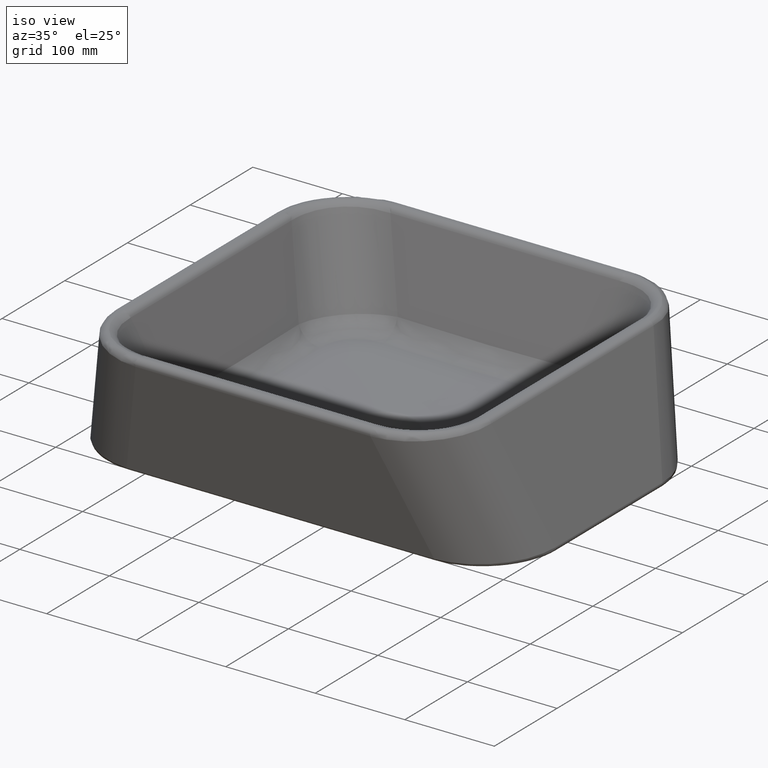
[diagram: clean part render]
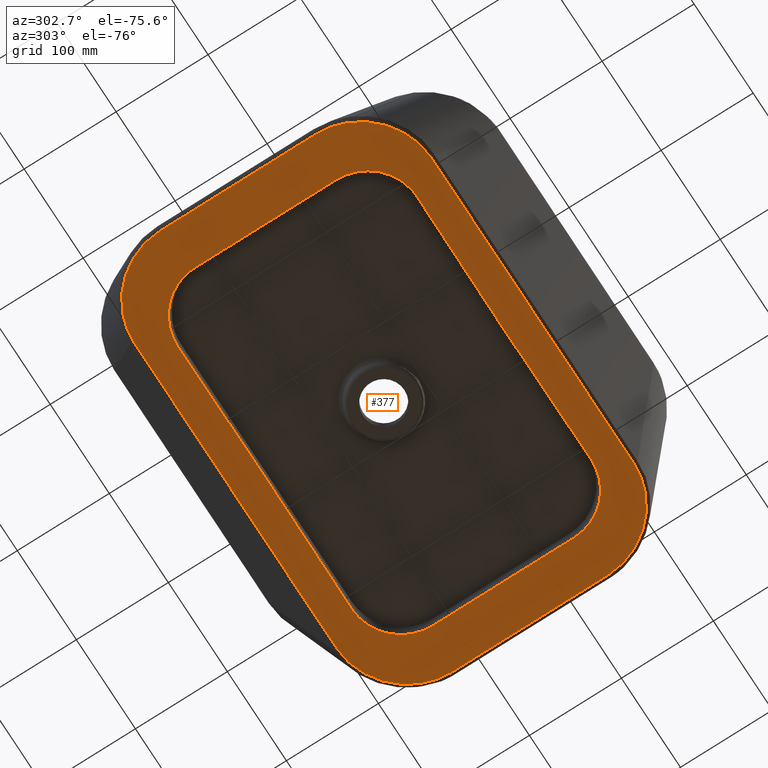
[diagram: tour spotlight — one face highlighted and labeled with its STEP entity id]
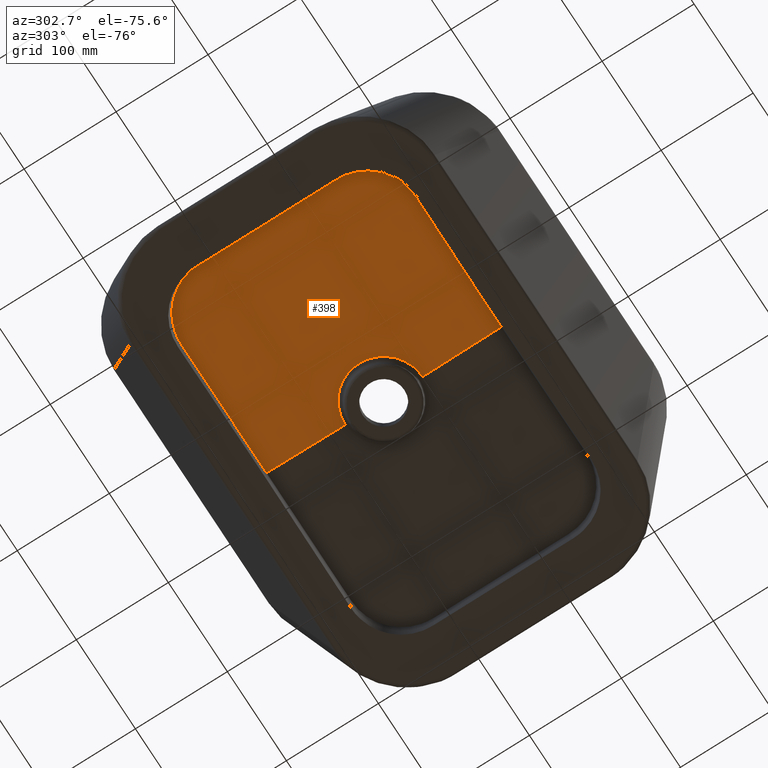
[diagram: tour spotlight — one face highlighted and labeled with its STEP entity id]
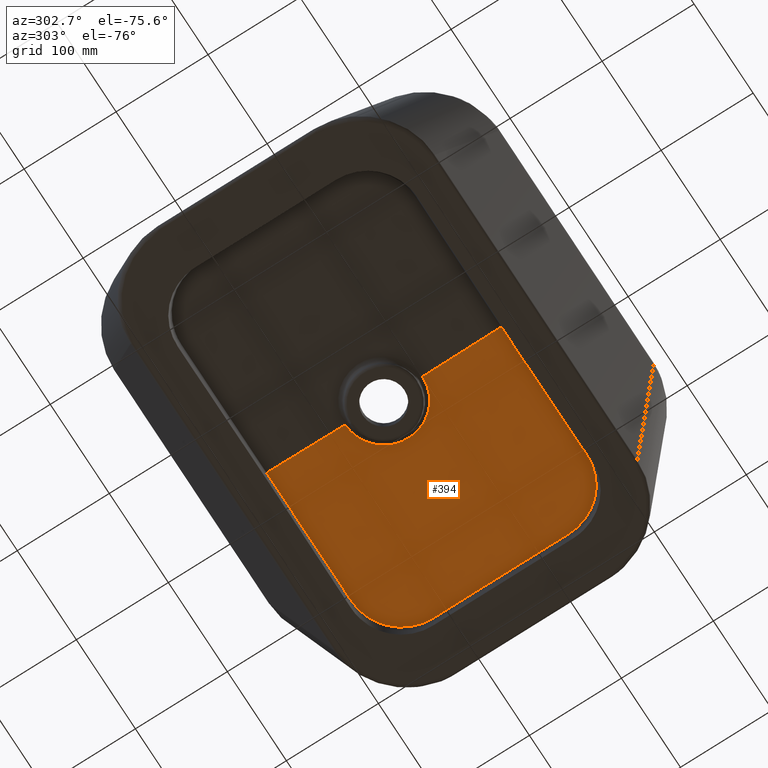
[diagram: tour spotlight — one face highlighted and labeled with its STEP entity id]
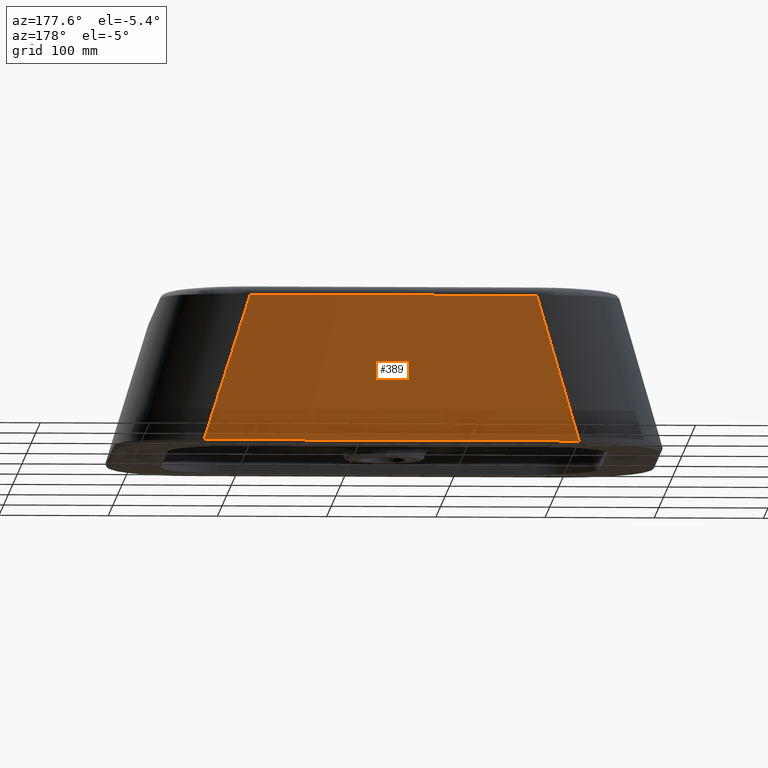
[diagram: tour spotlight — one face highlighted and labeled with its STEP entity id]
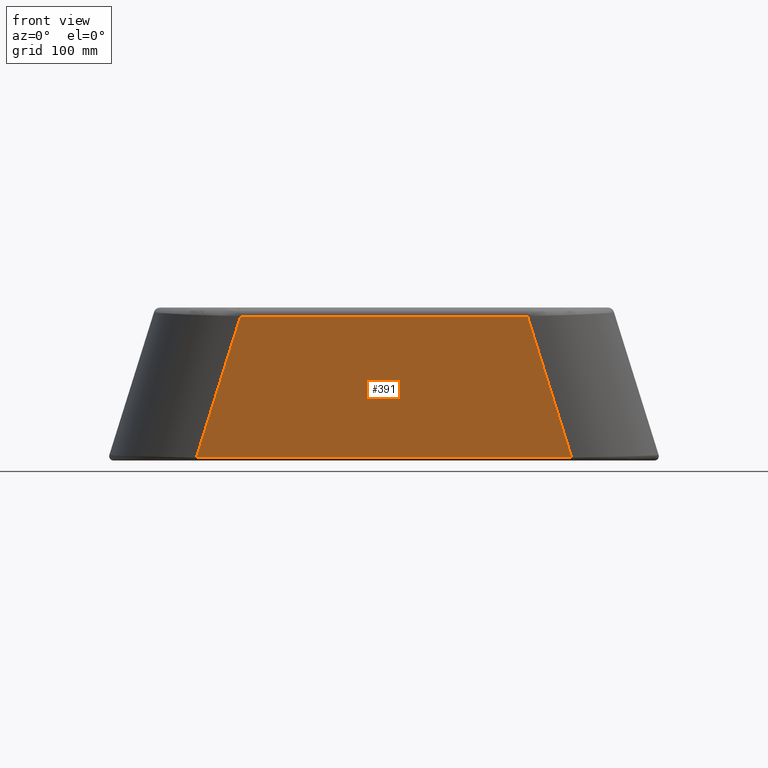
[diagram: tour spotlight — one face highlighted and labeled with its STEP entity id]
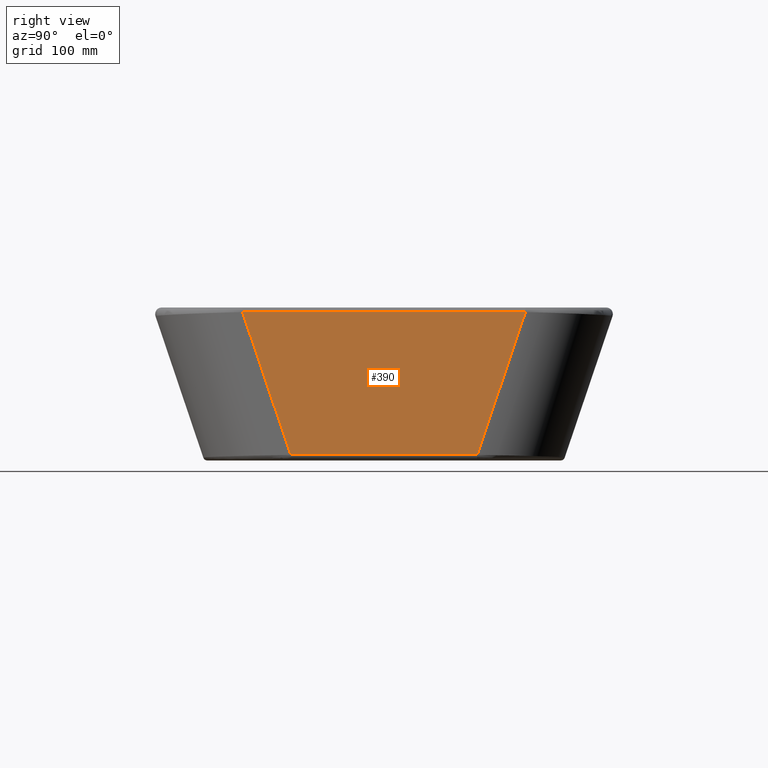
[diagram: tour spotlight — one face highlighted and labeled with its STEP entity id]
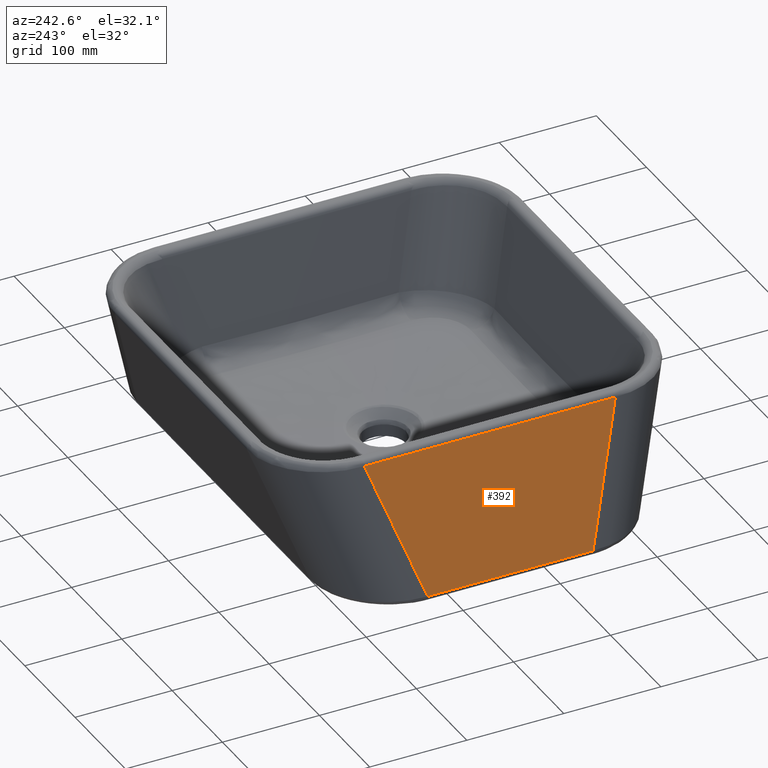
[diagram: tour spotlight — one face highlighted and labeled with its STEP entity id]
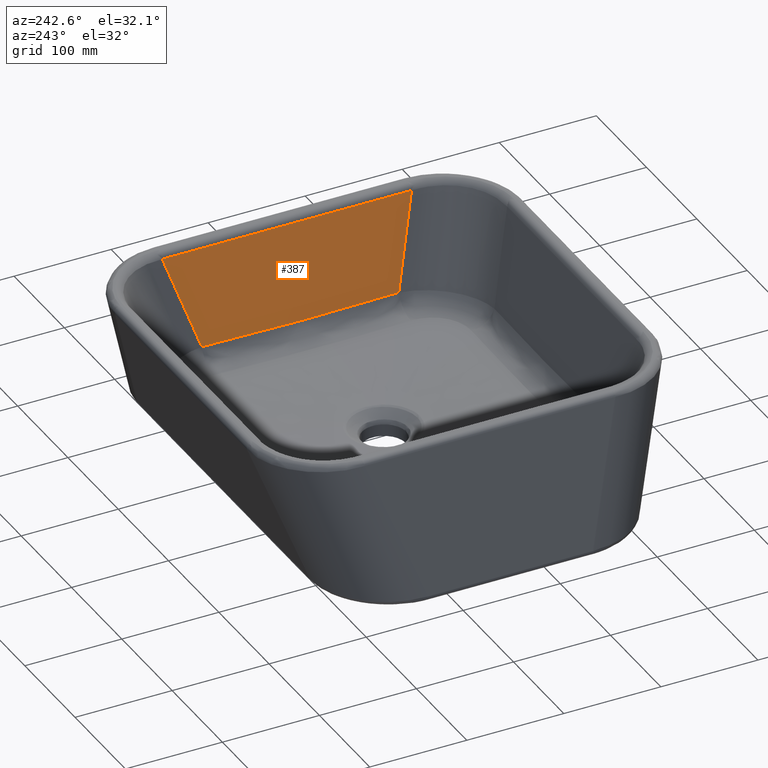
[diagram: tour spotlight — one face highlighted and labeled with its STEP entity id]
A machine part: a face-by-face anatomy tour. The part has 76 B-rep faces; the first image is the clean iso view, then the 8 largest visible faces are spotlighted one at a time (largest first), each with its STEP entity span.

Face 1 — auxiliary view, entity #377. In plain terms, the highlighted planar face has unit normal (0, 0, -1).
Definition (entity closure, byte-faithful):
#261=PLANE('',#1245);
#272=ELLIPSE('',#1241,72.6622166732108,66.);
#273=ELLIPSE('',#1242,72.6622166732108,66.);
#274=ELLIPSE('',#1243,72.6622166732108,66.);
#275=ELLIPSE('',#1244,72.6622166732108,66.);
#296=LINE('',#1892,#336);
#297=LINE('',#1897,#337);
#298=LINE('',#1901,#338);
#299=LINE('',#1905,#339);
#336=VECTOR('',#1336,1.);
#337=VECTOR('',#1339,1.);
#338=VECTOR('',#1342,1.);
#339=VECTOR('',#1345,1.);
#377=ADVANCED_FACE('',(#465,#466),#261,.T.);
#465=FACE_BOUND('',#477,.T.);
#466=FACE_BOUND('',#478,.T.);
#477=EDGE_LOOP('',(#567,#568,#569,#570,#571,#572,#573,#574));
#478=EDGE_LOOP('',(#575,#576,#577,#578,#579,#580,#581,#582));
#567=ORIENTED_EDGE('',*,*,#1007,.T.);
#568=ORIENTED_EDGE('',*,*,#1008,.T.);
#569=ORIENTED_EDGE('',*,*,#1009,.T.);
#570=ORIENTED_EDGE('',*,*,#1010,.T.);
#571=ORIENTED_EDGE('',*,*,#1011,.T.);
#572=ORIENTED_EDGE('',*,*,#1012,.T.);
#573=ORIENTED_EDGE('',*,*,#1013,.T.);
#574=ORIENTED_EDGE('',*,*,#1014,.T.);
#575=ORIENTED_EDGE('',*,*,#1015,.F.);
#576=ORIENTED_EDGE('',*,*,#1016,.T.);
#577=ORIENTED_EDGE('',*,*,#1017,.F.);
#578=ORIENTED_EDGE('',*,*,#1018,.T.);
#579=ORIENTED_EDGE('',*,*,#1019,.F.);
#580=ORIENTED_EDGE('',*,*,#1020,.T.);
#581=ORIENTED_EDGE('',*,*,#1021,.F.);
#582=ORIENTED_EDGE('',*,*,#1022,.T.);
#907=VERTEX_POINT('',#1893);
#908=VERTEX_POINT('',#1894);
#909=VERTEX_POINT('',#1896);
#910=VERTEX_POINT('',#1898);
#911=VERTEX_POINT('',#1900);
#912=VERTEX_POINT('',#1902);
#913=VERTEX_POINT('',#1904);
#914=VERTEX_POINT('',#1906);
#915=VERTEX_POINT('',#1912);
#916=VERTEX_POINT('',#1913);
#917=VERTEX_POINT('',#1930);
#918=VERTEX_POINT('',#1937);
#919=VERTEX_POINT('',#1954);
#920=VERTEX_POINT('',#1959);
#921=VERTEX_POINT('',#1976);
#922=VERTEX_POINT('',#1983);
#1007=EDGE_CURVE('',#907,#908,#296,.T.);
#1008=EDGE_CURVE('',#908,#909,#272,.T.);
#1009=EDGE_CURVE('',#909,#910,#297,.T.);
#1010=EDGE_CURVE('',#910,#911,#273,.T.);
#1011=EDGE_CURVE('',#911,#912,#298,.T.);
#1012=EDGE_CURVE('',#912,#913,#274,.T.);
#1013=EDGE_CURVE('',#913,#914,#299,.T.);
#1014=EDGE_CURVE('',#914,#907,#275,.T.);
#1015=EDGE_CURVE('',#915,#916,#1177,.T.);
#1016=EDGE_CURVE('',#915,#917,#1178,.T.);
#1017=EDGE_CURVE('',#918,#917,#1179,.T.);
#1018=EDGE_CURVE('',#918,#919,#1180,.T.);
#1019=EDGE_CURVE('',#920,#919,#1181,.T.);
#1020=EDGE_CURVE('',#920,#921,#1182,.T.);
#1021=EDGE_CURVE('',#922,#921,#1183,.T.);
#1022=EDGE_CURVE('',#922,#916,#1184,.T.);
#1177=B_SPLINE_CURVE_WITH_KNOTS('',3,(#1908,#1909,#1910,#1911),
 .UNSPECIFIED.,.F.,.F.,(4,4),(0.,1.),.UNSPECIFIED.);
#1178=B_SPLINE_CURVE_WITH_KNOTS('',3,(#1914,#1915,#1916,#1917,#1918,#1919,
#1920,#1921,#1922,#1923,#1924,#1925,#1926,#1927,#1928,#1929),
 .UNSPECIFIED.,.F.,.F.,(4,2,2,2,2,2,2,4),(0.,0.124999999999999,0.249999999999997,
0.374999999999996,0.499999999999995,0.749999999999997,0.874999999999999,
1.),.UNSPECIFIED.);
#1179=B_SPLINE_CURVE_WITH_KNOTS('',3,(#1931,#1932,#1933,#1934,#1935,#1936),
 .UNSPECIFIED.,.F.,.F.,(4,2,4),(0.,0.5,1.),.UNSPECIFIED.);
#1180=B_SPLINE_CURVE_WITH_KNOTS('',3,(#1938,#1939,#1940,#1941,#1942,#1943,
#1944,#1945,#1946,#1947,#1948,#1949,#1950,#1951,#1952,#1953),
 .UNSPECIFIED.,.F.,.F.,(4,2,2,2,2,2,2,4),(0.,0.125,0.25,0.375,0.5,0.625,
0.75,1.),.UNSPECIFIED.);
#1181=B_SPLINE_CURVE_WITH_KNOTS('',3,(#1955,#1956,#1957,#1958),
 .UNSPECIFIED.,.F.,.F.,(4,4),(0.,1.),.UNSPECIFIED.);
#1182=B_SPLINE_CURVE_WITH_KNOTS('',3,(#1960,#1961,#1962,#1963,#1964,#1965,
#1966,#1967,#1968,#1969,#1970,#1971,#1972,#1973,#1974,#1975),
 .UNSPECIFIED.,.F.,.F.,(4,2,2,2,2,2,2,4),(0.,0.125,0.25,0.375,0.5,0.625,
0.75,1.),.UNSPECIFIED.);
#1183=B_SPLINE_CURVE_WITH_KNOTS('',3,(#1977,#1978,#1979,#1980,#1981,#1982),
 .UNSPECIFIED.,.F.,.F.,(4,2,4),(0.,0.5,1.),.UNSPECIFIED.);
#1184=B_SPLINE_CURVE_WITH_KNOTS('',3,(#1984,#1985,#1986,#1987,#1988,#1989,
#1990,#1991,#1992,#1993,#1994,#1995,#1996,#1997,#1998,#1999),
 .UNSPECIFIED.,.F.,.F.,(4,2,2,2,2,2,2,4),(0.,0.125,0.249999999999999,0.374999999999999,
0.499999999999999,0.749999999999998,0.874999999999999,1.),.UNSPECIFIED.);
#1241=AXIS2_PLACEMENT_3D('',#1895,#1337,#1338);
#1242=AXIS2_PLACEMENT_3D('',#1899,#1340,#1341);
#1243=AXIS2_PLACEMENT_3D('',#1903,#1343,#1344);
#1244=AXIS2_PLACEMENT_3D('',#1907,#1346,#1347);
#1245=AXIS2_PLACEMENT_3D('',#2000,#1348,#1349);
#1336=DIRECTION('',(-1.,-2.20046511983548E-017,0.));
#1337=DIRECTION('',(0.,0.,1.));
#1338=DIRECTION('',(-0.73373421465365,-0.679436606495846,0.));
#1339=DIRECTION('',(0.,-1.,0.));
#1340=DIRECTION('',(0.,0.,1.));
#1341=DIRECTION('',(-0.73373421465365,0.679436606495846,0.));
#1342=DIRECTION('',(1.,-2.20046511983548E-017,0.));
#1343=DIRECTION('',(0.,0.,1.));
#1344=DIRECTION('',(0.73373421465365,0.679436606495846,0.));
#1345=DIRECTION('',(0.,1.,0.));
#1346=DIRECTION('',(0.,0.,1.));
#1347=DIRECTION('',(0.73373421465365,-0.679436606495846,0.));
#1348=DIRECTION('',(0.,0.,1.));
#1349=DIRECTION('',(1.,0.,0.));
#1892=CARTESIAN_POINT('',(104.906238427935,-628.744004977065,229.189909381171));
#1893=CARTESIAN_POINT('',(355.106173071399,-628.744004977065,229.189909381171));
#1894=CARTESIAN_POINT('',(184.609062066346,-628.744004977065,229.189909381171));
#1895=CARTESIAN_POINT('',(177.949600930577,-697.899312341047,229.189909381171));
#1896=CARTESIAN_POINT('',(108.283675290722,-704.509962777292,229.189909381171));
#1897=CARTESIAN_POINT('',(108.283675290722,-623.770546041579,229.189909381171));
#1898=CARTESIAN_POINT('',(108.283675290722,-1047.90080467256,229.189909381171));
#1899=CARTESIAN_POINT('',(177.949600930577,-1054.5114551088,229.189909381171));
#1900=CARTESIAN_POINT('',(184.609062066346,-1123.66676247278,229.189909381171));
#1901=CARTESIAN_POINT('',(104.906238427935,-1123.66676247278,229.189909381171));
#1902=CARTESIAN_POINT('',(355.106173071399,-1123.66676247278,229.189909381171));
#1903=CARTESIAN_POINT('',(361.765634207168,-1054.5114551088,229.189909381171));
#1904=CARTESIAN_POINT('',(431.431559847024,-1047.90080467256,229.189909381171));
#1905=CARTESIAN_POINT('',(431.431559847024,-623.770546041579,229.189909381171));
#1906=CARTESIAN_POINT('',(431.431559847024,-704.509962777292,229.189909381171));
#1907=CARTESIAN_POINT('',(361.765634207168,-697.899312341047,229.189909381171));
#1908=CARTESIAN_POINT('',(194.361937527168,-1077.3123079125,229.189909381171));
#1909=CARTESIAN_POINT('',(244.932222974675,-1076.99604622778,229.189909381171));
#1910=CARTESIAN_POINT('',(295.504844123383,-1076.99348454556,229.189909381171));
#1911=CARTESIAN_POINT('',(346.075140758217,-1077.30657766618,229.189909381171));
#1912=CARTESIAN_POINT('',(194.361937527168,-1077.3123079125,229.189909381171));
#1913=CARTESIAN_POINT('',(346.075140758217,-1077.30657766618,229.189909381171));
#1914=CARTESIAN_POINT('',(194.361937527168,-1077.3123079125,229.189909381171));
#1915=CARTESIAN_POINT('',(190.740966079013,-1077.33495311848,229.189909381171));
#1916=CARTESIAN_POINT('',(187.177341079127,-1077.00451903635,229.189909381171));
#1917=CARTESIAN_POINT('',(180.161666936476,-1075.65668375571,229.189909381171));
#1918=CARTESIAN_POINT('',(176.672134663815,-1074.62195694591,229.189909381171));
#1919=CARTESIAN_POINT('',(170.02527505447,-1071.89913941963,229.189909381171));
#1920=CARTESIAN_POINT('',(166.873150092522,-1070.22399655226,229.189909381171));
#1921=CARTESIAN_POINT('',(160.91100380717,-1066.24716940231,229.189909381171));
#1922=CARTESIAN_POINT('',(158.093821667504,-1063.92648888748,229.189909381171));
#1923=CARTESIAN_POINT('',(150.540339560281,-1056.3126903594,229.189909381171));
#1924=CARTESIAN_POINT('',(146.503881650272,-1050.16024769331,229.189909381171));
#1925=CARTESIAN_POINT('',(142.494638519443,-1040.22292915126,229.189909381171));
#1926=CARTESIAN_POINT('',(141.473756742223,-1036.74665635628,229.189909381171));
#1927=CARTESIAN_POINT('',(140.130878860257,-1029.66105430316,229.189909381171));
#1928=CARTESIAN_POINT('',(139.807288643325,-1026.07925335367,229.189909381171));
#1929=CARTESIAN_POINT('',(139.830804300585,-1022.45853576771,229.189909381171));
#1930=CARTESIAN_POINT('',(139.830804300585,-1022.45853576771,229.189909381171));
#1931=CARTESIAN_POINT('',(139.830804260927,-729.952231769066,229.189909381171));
#1932=CARTESIAN_POINT('',(140.147427317275,-778.702831142258,229.189909381171));
#1933=CARTESIAN_POINT('',(140.512542734907,-827.453185848492,229.189909381171));
#1934=CARTESIAN_POINT('',(140.512542733179,-924.957582202151,229.189909381171));
#1935=CARTESIAN_POINT('',(140.147427278049,-973.707936541102,229.189909381171));
#1936=CARTESIAN_POINT('',(139.830804300585,-1022.45853576771,229.189909381171));
#1937=CARTESIAN_POINT('',(139.830804260927,-729.952231769066,229.189909381171));
#1938=CARTESIAN_POINT('',(139.830804260927,-729.952231769066,229.189909381171));
#1939=CARTESIAN_POINT('',(139.807288636049,-726.33152006014,229.189909381171));
#1940=CARTESIAN_POINT('',(140.130987480982,-722.766993078474,229.189909381171));
#1941=CARTESIAN_POINT('',(141.454642199036,-715.747368070414,229.189909381171));
#1942=CARTESIAN_POINT('',(142.470805809355,-712.255834881017,229.189909381171));
#1943=CARTESIAN_POINT('',(145.153638526759,-705.588434523754,229.189909381171));
#1944=CARTESIAN_POINT('',(146.805599501629,-702.424279617444,229.189909381171));
#1945=CARTESIAN_POINT('',(150.730501048774,-696.435000493062,229.189909381171));
#1946=CARTESIAN_POINT('',(153.027360219823,-693.595501747924,229.189909381171));
#1947=CARTESIAN_POINT('',(158.060953478187,-688.5131584278,229.189909381171));
#1948=CARTESIAN_POINT('',(160.813869124795,-686.236612945279,229.189909381171));
#1949=CARTESIAN_POINT('',(166.803219141231,-682.225416965615,229.189909381171));
#1950=CARTESIAN_POINT('',(169.998334736976,-680.526313167388,229.189909381171));
#1951=CARTESIAN_POINT('',(179.908859546577,-676.455697928276,229.189909381171));
#1952=CARTESIAN_POINT('',(187.118709267686,-675.053161086829,229.189909381171));
#1953=CARTESIAN_POINT('',(194.361937486551,-675.098459537094,229.189909381171));
#1954=CARTESIAN_POINT('',(194.361937486552,-675.098459537094,229.189909381171));
#1955=CARTESIAN_POINT('',(346.075140751658,-675.10418978371,229.189909381171));
#1956=CARTESIAN_POINT('',(295.504843980582,-675.41728290515,229.189909381171));
#1957=CARTESIAN_POINT('',(244.932222820193,-675.41472122123,229.189909381171));
#1958=CARTESIAN_POINT('',(194.361937486552,-675.098459537094,229.189909381171));
#1959=CARTESIAN_POINT('',(346.075140751659,-675.10418978371,229.189909381171));
#1960=CARTESIAN_POINT('',(346.075140751658,-675.10418978371,229.189909381165));
#1961=CARTESIAN_POINT('',(349.677775189926,-675.081884989519,229.189909381165));
#1962=CARTESIAN_POINT('',(353.225373498495,-675.400793626571,229.189909381171));
#1963=CARTESIAN_POINT('',(360.212616128448,-676.707904882373,229.189909381171));
#1964=CARTESIAN_POINT('',(363.688381591036,-677.711936551989,229.189909381171));
#1965=CARTESIAN_POINT('',(370.329024149496,-680.368946177322,229.189909381171));
#1966=CARTESIAN_POINT('',(373.480348222046,-682.006721626219,229.189909381171));
#1967=CARTESIAN_POINT('',(379.443945868199,-685.902746469021,229.189909381171));
#1968=CARTESIAN_POINT('',(382.272436798824,-688.186314405814,229.189909381171));
#1969=CARTESIAN_POINT('',(387.331366411498,-693.195190713611,229.189909381171));
#1970=CARTESIAN_POINT('',(389.594872312594,-695.935733869689,229.189909381171));
#1971=CARTESIAN_POINT('',(393.578163948388,-701.899507726962,229.189909381171));
#1972=CARTESIAN_POINT('',(395.263880191218,-705.084089053763,229.189909381171));
#1973=CARTESIAN_POINT('',(399.29256714173,-714.957011893635,229.189909381171));
#1974=CARTESIAN_POINT('',(400.666354020832,-722.135429367288,229.189909381171));
#1975=CARTESIAN_POINT('',(400.611423726641,-729.342998537309,229.189909381171));
#1976=CARTESIAN_POINT('',(400.611423726641,-729.342998537308,229.189909381171));
#1977=CARTESIAN_POINT('',(400.611423732978,-1023.06776889878,229.189909381171));
#1978=CARTESIAN_POINT('',(400.238339291735,-974.114238379015,229.189909381171));
#1979=CARTESIAN_POINT('',(399.793060566626,-925.161137883747,229.189909381171));
#1980=CARTESIAN_POINT('',(399.793060570337,-827.249628561269,229.189909381171));
#1981=CARTESIAN_POINT('',(400.238339299157,-778.296528770091,229.189909381171));
#1982=CARTESIAN_POINT('',(400.611423726641,-729.342998537308,229.189909381171));
#1983=CARTESIAN_POINT('',(400.611423732978,-1023.06776889878,229.189909381171));
#1984=CARTESIAN_POINT('',(400.611423732978,-1023.06776889878,229.189909381171));
#1985=CARTESIAN_POINT('',(400.638882232481,-1026.67068112148,229.189909381171));
#1986=CARTESIAN_POINT('',(400.317991762506,-1030.21777152199,229.189909381171));
#1987=CARTESIAN_POINT('',(398.993739397451,-1037.20258843251,229.189909381171));
#1988=CARTESIAN_POINT('',(397.973233371363,-1040.67781913256,229.189909381171));
#1989=CARTESIAN_POINT('',(395.279184786562,-1047.29820962431,229.189909381171));
#1990=CARTESIAN_POINT('',(393.618687395453,-1050.43781409665,229.189909381171));
#1991=CARTESIAN_POINT('',(389.669766778296,-1056.37530837954,229.189909381171));
#1992=CARTESIAN_POINT('',(387.361855924848,-1059.18081520838,229.189909381171));
#1993=CARTESIAN_POINT('',(379.784562567003,-1066.69676729841,229.189909381171));
#1994=CARTESIAN_POINT('',(373.654997241394,-1070.70383709734,229.189909381171));
#1995=CARTESIAN_POINT('',(363.75657943712,-1074.67511433608,229.189909381171));
#1996=CARTESIAN_POINT('',(360.292855003445,-1075.68458070418,229.189909381171));
#1997=CARTESIAN_POINT('',(353.242100368402,-1077.01007151966,229.189909381171));
#1998=CARTESIAN_POINT('',(349.677882025802,-1077.32888312178,229.189909381171));
#1999=CARTESIAN_POINT('',(346.075140758217,-1077.30657766618,229.189909381171));
#2000=CARTESIAN_POINT('',(104.906238427935,-623.770546041579,229.189909381171));

Face 2 — auxiliary view, entity #398. In plain terms, the highlighted face is a freeform B-spline surface patch.
Definition (entity closure, byte-faithful):
#209=FACE_OUTER_BOUND('',#501,.T.);
#398=ADVANCED_FACE('',(#209),#459,.T.);
#459=B_SPLINE_SURFACE_WITH_KNOTS('',3,3,((#3133,#3134,#3135,#3136),(#3137,
#3138,#3139,#3140),(#3141,#3142,#3143,#3144),(#3145,#3146,#3147,#3148),
(#3149,#3150,#3151,#3152),(#3153,#3154,#3155,#3156),(#3157,#3158,#3159,
#3160),(#3161,#3162,#3163,#3164),(#3165,#3166,#3167,#3168),(#3169,#3170,
#3171,#3172),(#3173,#3174,#3175,#3176),(#3177,#3178,#3179,#3180),(#3181,
#3182,#3183,#3184),(#3185,#3186,#3187,#3188),(#3189,#3190,#3191,#3192),
(#3193,#3194,#3195,#3196),(#3197,#3198,#3199,#3200),(#3201,#3202,#3203,
#3204),(#3205,#3206,#3207,#3208),(#3209,#3210,#3211,#3212),(#3213,#3214,
#3215,#3216),(#3217,#3218,#3219,#3220),(#3221,#3222,#3223,#3224),(#3225,
#3226,#3227,#3228),(#3229,#3230,#3231,#3232)),.UNSPECIFIED.,.F.,.F.,.F.,
(4,3,3,3,3,3,3,3,4),(4,4),(0.,0.125,0.25,0.375,0.5,0.625,0.75,0.875,1.),
(0.,1.),.UNSPECIFIED.);
#501=EDGE_LOOP('',(#680,#681,#682,#683,#684,#685,#686,#687));
#680=ORIENTED_EDGE('',*,*,#1090,.F.);
#681=ORIENTED_EDGE('',*,*,#1104,.T.);
#682=ORIENTED_EDGE('',*,*,#1088,.F.);
#683=ORIENTED_EDGE('',*,*,#1100,.F.);
#684=ORIENTED_EDGE('',*,*,#1105,.T.);
#685=ORIENTED_EDGE('',*,*,#1106,.F.);
#686=ORIENTED_EDGE('',*,*,#1107,.T.);
#687=ORIENTED_EDGE('',*,*,#1096,.F.);
#978=VERTEX_POINT('',#2753);
#979=VERTEX_POINT('',#2754);
#980=VERTEX_POINT('',#2783);
#981=VERTEX_POINT('',#2788);
#986=VERTEX_POINT('',#2941);
#987=VERTEX_POINT('',#2978);
#988=VERTEX_POINT('',#3113);
#989=VERTEX_POINT('',#3118);
#1088=EDGE_CURVE('',#978,#979,#1201,.T.);
#1090=EDGE_CURVE('',#980,#981,#1203,.T.);
#1096=EDGE_CURVE('',#981,#986,#1209,.T.);
#1100=EDGE_CURVE('',#987,#978,#1213,.T.);
#1104=EDGE_CURVE('',#980,#979,#1217,.T.);
#1105=EDGE_CURVE('',#987,#988,#1218,.T.);
#1106=EDGE_CURVE('',#989,#988,#1219,.T.);
#1107=EDGE_CURVE('',#989,#986,#1220,.T.);
#1201=B_SPLINE_CURVE_WITH_KNOTS('',3,(#2749,#2750,#2751,#2752),
 .UNSPECIFIED.,.F.,.F.,(4,4),(0.,1.),.UNSPECIFIED.);
#1203=B_SPLINE_CURVE_WITH_KNOTS('',3,(#2784,#2785,#2786,#2787),
 .UNSPECIFIED.,.F.,.F.,(4,4),(0.,1.),.UNSPECIFIED.);
#1209=B_SPLINE_CURVE_WITH_KNOTS('',3,(#2937,#2938,#2939,#2940),
 .UNSPECIFIED.,.F.,.F.,(4,4),(0.,1.),.UNSPECIFIED.);
#1213=B_SPLINE_CURVE_WITH_KNOTS('',3,(#2979,#2980,#2981,#2982),
 .UNSPECIFIED.,.F.,.F.,(4,4),(0.,1.),.UNSPECIFIED.);
#1217=B_SPLINE_CURVE_WITH_KNOTS('',3,(#3071,#3072,#3073,#3074,#3075,#3076,
#3077,#3078,#3079,#3080,#3081,#3082,#3083,#3084,#3085,#3086,#3087,#3088,
#3089,#3090,#3091,#3092,#3093,#3094,#3095,#3096,#3097,#3098),
 .UNSPECIFIED.,.F.,.F.,(4,2,2,2,2,2,2,2,2,2,2,2,2,4),(0.,0.124999999999998,
0.187499999999998,0.249999999999998,0.312499999999999,0.374999999999999,
0.437499999999999,0.499999999999999,0.624999999999999,0.687499999999999,
0.75,0.8125,0.875,1.),.UNSPECIFIED.);
#1218=B_SPLINE_CURVE_WITH_KNOTS('',3,(#3099,#3100,#3101,#3102,#3103,#3104,
#3105,#3106,#3107,#3108,#3109,#3110,#3111,#3112),.UNSPECIFIED.,.F.,.F.,
(4,2,2,2,2,2,4),(0.,0.125000000000001,0.250000000000001,0.375000000000002,
0.500000000000003,0.750000000000001,1.),.UNSPECIFIED.);
#1219=B_SPLINE_CURVE_WITH_KNOTS('',3,(#3114,#3115,#3116,#3117),
 .UNSPECIFIED.,.F.,.F.,(4,4),(0.,1.),.UNSPECIFIED.);
#1220=B_SPLINE_CURVE_WITH_KNOTS('',3,(#3119,#3120,#3121,#3122,#3123,#3124,
#3125,#3126,#3127,#3128,#3129,#3130,#3131,#3132),.UNSPECIFIED.,.F.,.F.,
(4,2,2,2,2,2,4),(0.,0.125000000000001,0.250000000000001,0.375000000000002,
0.500000000000003,0.750000000000001,1.),.UNSPECIFIED.);
#2749=CARTESIAN_POINT('',(397.305411385418,-876.205383726578,217.486440132709));
#2750=CARTESIAN_POINT('',(368.766915590362,-876.205383726208,218.48302636601));
#2751=CARTESIAN_POINT('',(340.228419795307,-876.205383725839,219.47961259931));
#2752=CARTESIAN_POINT('',(311.689924000251,-876.205383725468,220.47619883261));
#2753=CARTESIAN_POINT('',(397.305411385418,-876.205383726578,217.486440132709));
#2754=CARTESIAN_POINT('',(311.689924000251,-876.205383725468,220.47619883261));
#2783=CARTESIAN_POINT('',(227.759131623219,-876.205383724924,220.476198894773));
#2784=CARTESIAN_POINT('',(227.759131623219,-876.205383724924,220.476198894773));
#2785=CARTESIAN_POINT('',(199.225184777638,-876.205383724925,219.479771514289));
#2786=CARTESIAN_POINT('',(170.691237932058,-876.205383724924,218.483344133804));
#2787=CARTESIAN_POINT('',(142.157291086477,-876.205383724924,217.48691675332));
#2788=CARTESIAN_POINT('',(142.157291086477,-876.205383724924,217.48691675332));
#2937=CARTESIAN_POINT('',(142.157291086477,-876.205383724924,217.48691675332));
#2938=CARTESIAN_POINT('',(142.157291086147,-828.269671108834,217.486916753308));
#2939=CARTESIAN_POINT('',(141.947496012293,-780.350405276797,216.475296789096));
#2940=CARTESIAN_POINT('',(141.810162072937,-732.434780462832,215.221502675719));
#2941=CARTESIAN_POINT('',(141.810162072937,-732.434780462832,215.221502675719));
#2978=CARTESIAN_POINT('',(397.619985468319,-731.829087661356,215.206116838667));
#2979=CARTESIAN_POINT('',(397.619985468319,-731.829087661356,215.206116838667));
#2980=CARTESIAN_POINT('',(397.518096482611,-779.946620381958,216.466770217425));
#2981=CARTESIAN_POINT('',(397.305411384851,-828.067717861,217.486440132751));
#2982=CARTESIAN_POINT('',(397.305411385418,-876.205383726578,217.486440132709));
#3071=CARTESIAN_POINT('',(227.759131623219,-876.205383724924,220.476198894773));
#3072=CARTESIAN_POINT('',(227.759131665046,-870.663322786603,220.476198896233));
#3073=CARTESIAN_POINT('',(228.854611836554,-865.207187249728,220.47619944114));
#3074=CARTESIAN_POINT('',(232.013117534677,-857.590950374237,220.476198622761));
#3075=CARTESIAN_POINT('',(233.330658278084,-855.137227604837,220.476185198355));
#3076=CARTESIAN_POINT('',(236.371473236093,-850.593917905401,220.476189250625));
#3077=CARTESIAN_POINT('',(238.105155462857,-848.474876407448,220.476199406604));
#3078=CARTESIAN_POINT('',(242.023930303906,-844.559809863197,220.476198374944));
#3079=CARTESIAN_POINT('',(244.148590855865,-842.825067865507,220.476186884437));
#3080=CARTESIAN_POINT('',(248.694076433387,-839.789817176153,220.476187520458));
#3081=CARTESIAN_POINT('',(251.145606247257,-838.476260271844,220.476198790023));
#3082=CARTESIAN_POINT('',(256.229599457825,-836.373911923033,220.4761989807));
#3083=CARTESIAN_POINT('',(258.845512809562,-835.584423315257,220.476187372537));
#3084=CARTESIAN_POINT('',(264.221133017764,-834.514514565819,220.476187008646));
#3085=CARTESIAN_POINT('',(266.998856948388,-834.23871592704,220.476196919707));
#3086=CARTESIAN_POINT('',(275.231144264071,-834.242545486728,220.476202836977));
#3087=CARTESIAN_POINT('',(280.743524387623,-835.344801886285,220.476195622208));
#3088=CARTESIAN_POINT('',(288.320558852899,-838.485989433733,220.476200504183));
#3089=CARTESIAN_POINT('',(290.779828291629,-839.803417263706,220.476188371521));
#3090=CARTESIAN_POINT('',(295.34043514842,-842.854793696769,220.476185937893));
#3091=CARTESIAN_POINT('',(297.452955039594,-844.586318879538,220.476199342917));
#3092=CARTESIAN_POINT('',(301.336289311985,-848.468573814539,220.476198349082));
#3093=CARTESIAN_POINT('',(303.10215756867,-850.6257961655,220.476186025184));
#3094=CARTESIAN_POINT('',(306.138837364352,-855.172678977178,220.476188303071));
#3095=CARTESIAN_POINT('',(307.433363725118,-857.583234554549,220.476199647262));
#3096=CARTESIAN_POINT('',(310.610089667824,-865.247938465346,220.476197215413));
#3097=CARTESIAN_POINT('',(311.689923957727,-870.663063269036,220.476198834098));
#3098=CARTESIAN_POINT('',(311.689924000251,-876.205383725468,220.47619883261));
#3099=CARTESIAN_POINT('',(397.619985468319,-731.829087661356,215.206116838667));
#3100=CARTESIAN_POINT('',(397.627603833379,-728.231280425111,215.111856231523));
#3101=CARTESIAN_POINT('',(397.286346481476,-724.691351226618,215.025648780786));
#3102=CARTESIAN_POINT('',(395.92341438837,-717.724408022692,214.867442591112));
#3103=CARTESIAN_POINT('',(394.884542845457,-714.260312760435,214.794768081209));
#3104=CARTESIAN_POINT('',(392.15867040067,-707.662209129566,214.667364629273));
#3105=CARTESIAN_POINT('',(390.484871860943,-704.534395370492,214.612590760006));
#3106=CARTESIAN_POINT('',(386.516532218479,-698.620722388099,214.519754132381));
#3107=CARTESIAN_POINT('',(384.202197516438,-695.826571374387,214.481747530871));
#3108=CARTESIAN_POINT('',(376.614531055787,-688.337588555278,214.397123852197));
#3109=CARTESIAN_POINT('',(370.49109424416,-684.340363352454,214.377568065865));
#3110=CARTESIAN_POINT('',(357.314796090222,-679.04133771754,214.41175183318));
#3111=CARTESIAN_POINT('',(350.149746702946,-677.674689215227,214.465283221537));
#3112=CARTESIAN_POINT('',(342.953059057115,-677.702577727221,214.553093641413));
#3113=CARTESIAN_POINT('',(342.953059057115,-677.702577727221,214.553093641413));
#3114=CARTESIAN_POINT('',(196.427357117615,-677.697177136634,214.552087587674));
#3115=CARTESIAN_POINT('',(245.269246655645,-677.889306416491,215.148600707623));
#3116=CARTESIAN_POINT('',(294.111147274069,-677.891849279584,215.14903846941));
#3117=CARTESIAN_POINT('',(342.953059057115,-677.702577727221,214.553093641413));
#3118=CARTESIAN_POINT('',(196.427357117615,-677.697177136634,214.552087587674));
#3119=CARTESIAN_POINT('',(196.427357117615,-677.697177136634,214.552087587674));
#3120=CARTESIAN_POINT('',(192.811127405975,-677.682951978336,214.507922046821));
#3121=CARTESIAN_POINT('',(189.252859475692,-678.020429877355,214.473133035081));
#3122=CARTESIAN_POINT('',(182.248789345195,-679.377774561447,214.421026348065));
#3123=CARTESIAN_POINT('',(178.76603683992,-680.414644154424,214.403674368215));
#3124=CARTESIAN_POINT('',(172.127296002707,-683.137588954725,214.387972358703));
#3125=CARTESIAN_POINT('',(168.978681598331,-684.810151942864,214.389394628187));
#3126=CARTESIAN_POINT('',(163.021762897747,-688.775269232644,214.410816618857));
#3127=CARTESIAN_POINT('',(160.203801307199,-691.08839822777,214.431183862859));
#3128=CARTESIAN_POINT('',(152.640788747034,-698.675824435028,214.518801467886));
#3129=CARTESIAN_POINT('',(148.588138038984,-704.803766241928,214.614914047405));
#3130=CARTESIAN_POINT('',(143.195284618168,-718.010050770234,214.87062493146));
#3131=CARTESIAN_POINT('',(141.789438642217,-725.204403646334,215.032307524341));
#3132=CARTESIAN_POINT('',(141.810162072937,-732.434780462832,215.221502675719));
#3133=CARTESIAN_POINT('',(228.807997565165,-876.205383724924,220.512826100559));
#3134=CARTESIAN_POINT('',(169.922422898943,-876.205383724925,218.456496521251));
#3135=CARTESIAN_POINT('',(111.036848232721,-876.205383724924,216.400166941943));
#3136=CARTESIAN_POINT('',(52.1512735664981,-876.205383724924,214.343837362634));
#3137=CARTESIAN_POINT('',(228.807997565165,-870.849364750035,220.512826100559));
#3138=CARTESIAN_POINT('',(169.922422898943,-863.141261051095,218.456496521251));
#3139=CARTESIAN_POINT('',(111.036848232721,-855.433157352153,216.400166941943));
#3140=CARTESIAN_POINT('',(52.1512735664981,-847.725053653212,214.343837362634));
#3141=CARTESIAN_POINT('',(229.872923182693,-865.495622136881,220.512826100559));
#3142=CARTESIAN_POINT('',(172.519982407893,-850.082447548655,218.456496521251));
#3143=CARTESIAN_POINT('',(115.167041633094,-834.669272960425,216.400166941943));
#3144=CARTESIAN_POINT('',(57.8141008582937,-819.256098372197,214.343837362634));
#3145=CARTESIAN_POINT('',(231.922582907825,-860.547305830242,220.512826100559));
#3146=CARTESIAN_POINT('',(177.519405713574,-838.012772000094,218.456496521251));
#3147=CARTESIAN_POINT('',(123.116228519322,-815.478238169944,216.400166941943));
#3148=CARTESIAN_POINT('',(68.7130513250705,-792.943704339795,214.343837362634));
#3149=CARTESIAN_POINT('',(233.972242632956,-855.598989523604,220.512826100559));
#3150=CARTESIAN_POINT('',(182.518829019254,-825.943096451533,218.456496521251));
#3151=CARTESIAN_POINT('',(131.06541540555,-796.287203379463,216.400166941943));
#3152=CARTESIAN_POINT('',(79.6120017918472,-766.631310307392,214.343837362634));
#3153=CARTESIAN_POINT('',(237.004894213845,-851.060305691512,220.512826100559));
#3154=CARTESIAN_POINT('',(189.9160526578,-814.872368926411,218.456496521251));
#3155=CARTESIAN_POINT('',(142.827211101754,-778.684432161321,216.400166941943));
#3156=CARTESIAN_POINT('',(95.7383695457081,-742.496495396225,214.343837362634));
#3157=CARTESIAN_POINT('',(240.792171551166,-847.273028354216,220.512826100559));
#3158=CARTESIAN_POINT('',(199.153782390748,-805.634639193524,218.456496521251));
#3159=CARTESIAN_POINT('',(157.515393230331,-763.99625003284,216.400166941943));
#3160=CARTESIAN_POINT('',(115.877004069913,-722.357860872152,214.343837362634));
#3161=CARTESIAN_POINT('',(244.579448888486,-843.48575101692,220.512826100559));
#3162=CARTESIAN_POINT('',(208.391512123697,-796.396909460637,218.456496521251));
#3163=CARTESIAN_POINT('',(172.203575358908,-749.30806790436,216.400166941943));
#3164=CARTESIAN_POINT('',(136.015638594118,-702.21922634808,214.343837362634));
#3165=CARTESIAN_POINT('',(249.118132720597,-840.45309943606,220.512826100559));
#3166=CARTESIAN_POINT('',(219.46223964886,-788.999685822167,218.45649652125));
#3167=CARTESIAN_POINT('',(189.806346577124,-737.546272208268,216.400166941943));
#3168=CARTESIAN_POINT('',(160.150453505387,-686.092858594372,214.343837362634));
#3169=CARTESIAN_POINT('',(254.06644902725,-838.403439710961,220.512826100559));
#3170=CARTESIAN_POINT('',(231.531915197452,-784.000262516566,218.456496521251));
#3171=CARTESIAN_POINT('',(208.997381367658,-729.597085322165,216.400166941943));
#3172=CARTESIAN_POINT('',(186.462847537862,-675.193908127768,214.343837362634));
#3173=CARTESIAN_POINT('',(259.014765333902,-836.353779985862,220.512826100559));
#3174=CARTESIAN_POINT('',(243.601590746045,-779.000839210964,218.456496521252));
#3175=CARTESIAN_POINT('',(228.188416158192,-721.647898436063,216.400166941943));
#3176=CARTESIAN_POINT('',(212.775241570337,-664.294957661163,214.343837362634));
#3177=CARTESIAN_POINT('',(264.368507947062,-835.288854368368,220.512826100559));
#3178=CARTESIAN_POINT('',(256.660404248504,-776.403279702097,218.456496521251));
#3179=CARTESIAN_POINT('',(248.952300549945,-717.517705035822,216.400166941943));
#3180=CARTESIAN_POINT('',(241.244196851386,-658.632130369548,214.343837362634));
#3181=CARTESIAN_POINT('',(269.724526921952,-835.288854368403,220.512826100559));
#3182=CARTESIAN_POINT('',(269.724526922334,-776.403279702182,218.456496521251));
#3183=CARTESIAN_POINT('',(269.724526922716,-717.517705035958,216.400166941943));
#3184=CARTESIAN_POINT('',(269.724526923098,-658.632130369736,214.343837362634));
#3185=CARTESIAN_POINT('',(275.080545896841,-835.288854368438,220.512826100559));
#3186=CARTESIAN_POINT('',(282.788649596164,-776.403279702267,218.456496521251));
#3187=CARTESIAN_POINT('',(290.496753295487,-717.517705036095,216.400166941943));
#3188=CARTESIAN_POINT('',(298.204856994811,-658.632130369923,214.343837362634));
#3189=CARTESIAN_POINT('',(280.434288509988,-836.353779986,220.512826100559));
#3190=CARTESIAN_POINT('',(295.847463098588,-779.000839211302,218.45649652125));
#3191=CARTESIAN_POINT('',(311.260637687188,-721.647898436599,216.400166941943));
#3192=CARTESIAN_POINT('',(326.673812275788,-664.294957661898,214.343837362634));
#3193=CARTESIAN_POINT('',(285.382604816613,-838.403439711164,220.512826100559));
#3194=CARTESIAN_POINT('',(307.917138647117,-784.000262517059,218.456496521251));
#3195=CARTESIAN_POINT('',(330.451672477617,-729.597085322953,216.400166941943));
#3196=CARTESIAN_POINT('',(352.986206308119,-675.193908128848,214.343837362634));
#3197=CARTESIAN_POINT('',(290.330921123239,-840.453099436328,220.512826100559));
#3198=CARTESIAN_POINT('',(319.986814195645,-788.999685822817,218.456496521252));
#3199=CARTESIAN_POINT('',(349.642707268047,-737.546272209308,216.400166941943));
#3200=CARTESIAN_POINT('',(379.298600340451,-686.092858595798,214.343837362634));
#3201=CARTESIAN_POINT('',(294.869604955311,-843.485751017246,220.512826100559));
#3202=CARTESIAN_POINT('',(331.057541720712,-796.396909461436,218.456496521251));
#3203=CARTESIAN_POINT('',(367.245478486114,-749.308067905623,216.400166941943));
#3204=CARTESIAN_POINT('',(403.433415251515,-702.219226349811,214.343837362634));
#3205=CARTESIAN_POINT('',(298.656882292582,-847.273028354591,220.512826100559));
#3206=CARTESIAN_POINT('',(340.29527145354,-805.634639194444,218.456496521251));
#3207=CARTESIAN_POINT('',(381.933660614498,-763.996250034296,216.400166941943));
#3208=CARTESIAN_POINT('',(423.572049775456,-722.357860874149,214.343837362634));
#3209=CARTESIAN_POINT('',(302.444159629853,-851.060305691937,220.512826100559));
#3210=CARTESIAN_POINT('',(349.533001186368,-814.872368927453,218.456496521251));
#3211=CARTESIAN_POINT('',(396.621842742882,-778.68443216297,216.400166941943));
#3212=CARTESIAN_POINT('',(443.710684299396,-742.496495398486,214.343837362634));
#3213=CARTESIAN_POINT('',(305.476811210685,-855.598989524067,220.512826100559));
#3214=CARTESIAN_POINT('',(356.930224824774,-825.943096452663,218.456496521252));
#3215=CARTESIAN_POINT('',(408.383638438863,-796.287203381261,216.400166941943));
#3216=CARTESIAN_POINT('',(459.837052052952,-766.631310309857,214.343837362634));
#3217=CARTESIAN_POINT('',(307.526470935751,-860.547305830733,220.512826100559));
#3218=CARTESIAN_POINT('',(361.929648130297,-838.012772001287,218.456496521251));
#3219=CARTESIAN_POINT('',(416.332825324839,-815.478238171847,216.400166941943));
#3220=CARTESIAN_POINT('',(470.736002519383,-792.943704342404,214.343837362634));
#3221=CARTESIAN_POINT('',(309.576130660817,-865.495622137399,220.512826100559));
#3222=CARTESIAN_POINT('',(366.929071435819,-850.082447549912,218.45649652125));
#3223=CARTESIAN_POINT('',(424.282012210815,-834.669272962433,216.400166941943));
#3224=CARTESIAN_POINT('',(481.634952985814,-819.25609837495,214.343837362634));
#3225=CARTESIAN_POINT('',(310.641056278278,-870.849364750566,220.512826100559));
#3226=CARTESIAN_POINT('',(369.526630944601,-863.14126105239,218.456496521251));
#3227=CARTESIAN_POINT('',(428.412205610925,-855.433157354211,216.400166941943));
#3228=CARTESIAN_POINT('',(487.297780277249,-847.725053656035,214.343837362634));
#3229=CARTESIAN_POINT('',(310.641056278207,-876.205383725455,220.512826100559));
#3230=CARTESIAN_POINT('',(369.52663094443,-876.205383726222,218.456496521251));
#3231=CARTESIAN_POINT('',(428.412205610652,-876.205383726983,216.400166941943));
#3232=CARTESIAN_POINT('',(487.297780276874,-876.205383727748,214.343837362634));

Face 3 — auxiliary view, entity #394. In plain terms, the highlighted face is a freeform B-spline surface patch.
Definition (entity closure, byte-faithful):
#205=FACE_OUTER_BOUND('',#497,.T.);
#394=ADVANCED_FACE('',(#205),#455,.T.);
#455=B_SPLINE_SURFACE_WITH_KNOTS('',3,3,((#2837,#2838,#2839,#2840),(#2841,
#2842,#2843,#2844),(#2845,#2846,#2847,#2848),(#2849,#2850,#2851,#2852),
(#2853,#2854,#2855,#2856),(#2857,#2858,#2859,#2860),(#2861,#2862,#2863,
#2864),(#2865,#2866,#2867,#2868),(#2869,#2870,#2871,#2872),(#2873,#2874,
#2875,#2876),(#2877,#2878,#2879,#2880),(#2881,#2882,#2883,#2884),(#2885,
#2886,#2887,#2888),(#2889,#2890,#2891,#2892),(#2893,#2894,#2895,#2896),
(#2897,#2898,#2899,#2900),(#2901,#2902,#2903,#2904),(#2905,#2906,#2907,
#2908),(#2909,#2910,#2911,#2912),(#2913,#2914,#2915,#2916),(#2917,#2918,
#2919,#2920),(#2921,#2922,#2923,#2924),(#2925,#2926,#2927,#2928),(#2929,
#2930,#2931,#2932),(#2933,#2934,#2935,#2936)),.UNSPECIFIED.,.F.,.F.,.F.,
(4,3,3,3,3,3,3,3,4),(4,4),(0.,0.125,0.25,0.375,0.5,0.625,0.75,0.875,1.),
(0.,1.),.UNSPECIFIED.);
#497=EDGE_LOOP('',(#658,#659,#660,#661,#662,#663,#664,#665));
#658=ORIENTED_EDGE('',*,*,#1088,.T.);
#659=ORIENTED_EDGE('',*,*,#1089,.T.);
#660=ORIENTED_EDGE('',*,*,#1090,.T.);
#661=ORIENTED_EDGE('',*,*,#1091,.T.);
#662=ORIENTED_EDGE('',*,*,#1092,.T.);
#663=ORIENTED_EDGE('',*,*,#1093,.T.);
#664=ORIENTED_EDGE('',*,*,#1094,.T.);
#665=ORIENTED_EDGE('',*,*,#1095,.T.);
#978=VERTEX_POINT('',#2753);
#979=VERTEX_POINT('',#2754);
#980=VERTEX_POINT('',#2783);
#981=VERTEX_POINT('',#2788);
#982=VERTEX_POINT('',#2793);
#983=VERTEX_POINT('',#2810);
#984=VERTEX_POINT('',#2815);
#985=VERTEX_POINT('',#2832);
#1088=EDGE_CURVE('',#978,#979,#1201,.T.);
#1089=EDGE_CURVE('',#979,#980,#1202,.T.);
#1090=EDGE_CURVE('',#980,#981,#1203,.T.);
#1091=EDGE_CURVE('',#981,#982,#1204,.T.);
#1092=EDGE_CURVE('',#982,#983,#1205,.T.);
#1093=EDGE_CURVE('',#983,#984,#1206,.T.);
#1094=EDGE_CURVE('',#984,#985,#1207,.T.);
#1095=EDGE_CURVE('',#985,#978,#1208,.T.);
#1201=B_SPLINE_CURVE_WITH_KNOTS('',3,(#2749,#2750,#2751,#2752),
 .UNSPECIFIED.,.F.,.F.,(4,4),(0.,1.),.UNSPECIFIED.);
#1202=B_SPLINE_CURVE_WITH_KNOTS('',3,(#2755,#2756,#2757,#2758,#2759,#2760,
#2761,#2762,#2763,#2764,#2765,#2766,#2767,#2768,#2769,#2770,#2771,#2772,
#2773,#2774,#2775,#2776,#2777,#2778,#2779,#2780,#2781,#2782),
 .UNSPECIFIED.,.F.,.F.,(4,2,2,2,2,2,2,2,2,2,2,2,2,4),(0.,0.062499999999999,
0.124999999999998,0.187499999999997,0.249999999999996,0.374999999999995,
0.437499999999995,0.499999999999996,0.562499999999996,0.624999999999997,
0.687499999999997,0.749999999999998,0.874999999999999,1.),.UNSPECIFIED.);
#1203=B_SPLINE_CURVE_WITH_KNOTS('',3,(#2784,#2785,#2786,#2787),
 .UNSPECIFIED.,.F.,.F.,(4,4),(0.,1.),.UNSPECIFIED.);
#1204=B_SPLINE_CURVE_WITH_KNOTS('',3,(#2789,#2790,#2791,#2792),
 .UNSPECIFIED.,.F.,.F.,(4,4),(0.,1.),.UNSPECIFIED.);
#1205=B_SPLINE_CURVE_WITH_KNOTS('',3,(#2794,#2795,#2796,#2797,#2798,#2799,
#2800,#2801,#2802,#2803,#2804,#2805,#2806,#2807,#2808,#2809),
 .UNSPECIFIED.,.F.,.F.,(4,2,2,2,2,2,2,4),(0.,0.125,0.25,0.375,0.5,0.625,
0.75,1.),.UNSPECIFIED.);
#1206=B_SPLINE_CURVE_WITH_KNOTS('',3,(#2811,#2812,#2813,#2814),
 .UNSPECIFIED.,.F.,.F.,(4,4),(0.,1.),.UNSPECIFIED.);
#1207=B_SPLINE_CURVE_WITH_KNOTS('',3,(#2816,#2817,#2818,#2819,#2820,#2821,
#2822,#2823,#2824,#2825,#2826,#2827,#2828,#2829,#2830,#2831),
 .UNSPECIFIED.,.F.,.F.,(4,2,2,2,2,2,2,4),(0.,0.125,0.25,0.375,0.5,0.625,
0.75,1.),.UNSPECIFIED.);
#1208=B_SPLINE_CURVE_WITH_KNOTS('',3,(#2833,#2834,#2835,#2836),
 .UNSPECIFIED.,.F.,.F.,(4,4),(0.,1.),.UNSPECIFIED.);
#2749=CARTESIAN_POINT('',(397.305411385418,-876.205383726578,217.486440132709));
#2750=CARTESIAN_POINT('',(368.766915590362,-876.205383726208,218.48302636601));
#2751=CARTESIAN_POINT('',(340.228419795307,-876.205383725839,219.47961259931));
#2752=CARTESIAN_POINT('',(311.689924000251,-876.205383725468,220.47619883261));
#2753=CARTESIAN_POINT('',(397.305411385418,-876.205383726578,217.486440132709));
#2754=CARTESIAN_POINT('',(311.689924000251,-876.205383725468,220.47619883261));
#2755=CARTESIAN_POINT('',(311.689924000251,-876.205383725468,220.47619883261));
#2756=CARTESIAN_POINT('',(311.68992401842,-878.975788503963,220.476198831975));
#2757=CARTESIAN_POINT('',(311.421963398738,-881.700034060707,220.475977916412));
#2758=CARTESIAN_POINT('',(310.358235001359,-887.05760448124,220.475976848887));
#2759=CARTESIAN_POINT('',(309.550126185867,-889.717848534438,220.476196720732));
#2760=CARTESIAN_POINT('',(307.445536632176,-894.800577707232,220.476200921481));
#2761=CARTESIAN_POINT('',(306.155965823708,-897.209173778945,220.47618921057));
#2762=CARTESIAN_POINT('',(303.115499480445,-901.768230288931,220.476185134113));
#2763=CARTESIAN_POINT('',(301.346669474956,-903.929421742419,220.476198542496));
#2764=CARTESIAN_POINT('',(295.544493212708,-909.737136746824,220.47619942209));
#2765=CARTESIAN_POINT('',(290.879316239162,-912.861858442631,220.476204849595));
#2766=CARTESIAN_POINT('',(283.27253868839,-916.018587711907,220.476195903331));
#2767=CARTESIAN_POINT('',(280.603712137245,-916.826781595803,220.476186941909));
#2768=CARTESIAN_POINT('',(275.214160549715,-917.898520727323,220.476187376272));
#2769=CARTESIAN_POINT('',(272.483084613778,-918.171404971523,220.476200955505));
#2770=CARTESIAN_POINT('',(266.945426885092,-918.170152682299,220.476196758867));
#2771=CARTESIAN_POINT('',(264.215597386644,-917.894987724272,220.476186511318));
#2772=CARTESIAN_POINT('',(258.856337317309,-916.828662744585,220.476187835888));
#2773=CARTESIAN_POINT('',(256.195310693201,-916.025262801591,220.476198863189));
#2774=CARTESIAN_POINT('',(251.113006249507,-913.918406728602,220.476198870119));
#2775=CARTESIAN_POINT('',(248.705292385305,-912.627892873363,220.476187594616));
#2776=CARTESIAN_POINT('',(244.148970829574,-909.586499791214,220.476186782739));
#2777=CARTESIAN_POINT('',(241.988547716348,-907.817055534685,220.4761991783));
#2778=CARTESIAN_POINT('',(236.182806894067,-902.012456127509,220.476198285426));
#2779=CARTESIAN_POINT('',(233.058681907722,-897.336702860067,220.476197513207));
#2780=CARTESIAN_POINT('',(228.871652741293,-887.248990023767,220.476200257971));
#2781=CARTESIAN_POINT('',(227.759131587769,-881.744952329657,220.476198893535));
#2782=CARTESIAN_POINT('',(227.75913162322,-876.205383724924,220.476198894773));
#2783=CARTESIAN_POINT('',(227.759131623219,-876.205383724924,220.476198894773));
#2784=CARTESIAN_POINT('',(227.759131623219,-876.205383724924,220.476198894773));
#2785=CARTESIAN_POINT('',(199.225184777638,-876.205383724925,219.479771514289));
#2786=CARTESIAN_POINT('',(170.691237932058,-876.205383724924,218.483344133804));
#2787=CARTESIAN_POINT('',(142.157291086477,-876.205383724924,217.48691675332));
#2788=CARTESIAN_POINT('',(142.157291086477,-876.205383724924,217.48691675332));
#2789=CARTESIAN_POINT('',(142.157291086477,-876.205383724924,217.48691675332));
#2790=CARTESIAN_POINT('',(142.157291086808,-924.141096368425,217.486916753331));
#2791=CARTESIAN_POINT('',(141.947495975878,-972.060362227807,216.475296787295));
#2792=CARTESIAN_POINT('',(141.810162109076,-1019.9759870694,215.221502674407));
#2793=CARTESIAN_POINT('',(141.810162109076,-1019.9759870694,215.221502674407));
#2794=CARTESIAN_POINT('',(141.810162109076,-1019.9759870694,215.221502674407));
#2795=CARTESIAN_POINT('',(141.799800521144,-1023.59113292997,215.126906212142));
#2796=CARTESIAN_POINT('',(142.137661961411,-1027.14866271386,215.040333236265));
#2797=CARTESIAN_POINT('',(143.4891512597,-1034.15187674964,214.881251292964));
#2798=CARTESIAN_POINT('',(144.519131696312,-1037.63379109076,214.80807645761));
#2799=CARTESIAN_POINT('',(147.226187268874,-1044.28049317701,214.679272400294));
#2800=CARTESIAN_POINT('',(148.888646175781,-1047.43390145136,214.623709666939));
#2801=CARTESIAN_POINT('',(152.829800648727,-1053.40170747278,214.529110498455));
#2802=CARTESIAN_POINT('',(155.131987217781,-1056.23001729674,214.490040569538));
#2803=CARTESIAN_POINT('',(160.171273922631,-1061.29385142896,214.431462249688));
#2804=CARTESIAN_POINT('',(162.924665702593,-1063.56275843316,214.411355773456));
#2805=CARTESIAN_POINT('',(168.909622711876,-1067.56253449301,214.389458196503));
#2806=CARTESIAN_POINT('',(172.101462974358,-1069.25897144955,214.387995445154));
#2807=CARTESIAN_POINT('',(181.997059376609,-1073.32850555438,214.411149813152));
#2808=CARTESIAN_POINT('',(189.193965437664,-1074.74204429702,214.46374512022));
#2809=CARTESIAN_POINT('',(196.427357154246,-1074.71359031307,214.552087588122));
#2810=CARTESIAN_POINT('',(196.427357154246,-1074.71359031307,214.552087588122));
#2811=CARTESIAN_POINT('',(196.427357154246,-1074.71359031307,214.552087588122));
#2812=CARTESIAN_POINT('',(245.269246682548,-1074.52146103332,215.148600707689));
#2813=CARTESIAN_POINT('',(294.111147291242,-1074.51891817032,215.149038469253));
#2814=CARTESIAN_POINT('',(342.953059064555,-1074.70818972266,214.553093641322));
#2815=CARTESIAN_POINT('',(342.953059064555,-1074.70818972266,214.553093641322));
#2816=CARTESIAN_POINT('',(342.953059064555,-1074.70818972266,214.553093641322));
#2817=CARTESIAN_POINT('',(346.551462688236,-1074.72213421039,214.509187701721));
#2818=CARTESIAN_POINT('',(350.094074010939,-1074.39549544693,214.474295464832));
#2819=CARTESIAN_POINT('',(357.070269395885,-1073.07669565575,214.421463886116));
#2820=CARTESIAN_POINT('',(360.539293994967,-1072.06902067525,214.403470877143));
#2821=CARTESIAN_POINT('',(367.171618495373,-1069.40895810017,214.386096627755));
#2822=CARTESIAN_POINT('',(370.319344038606,-1067.77228302469,214.38653544243));
#2823=CARTESIAN_POINT('',(376.277835041805,-1063.88548771051,214.405799109431));
#2824=CARTESIAN_POINT('',(379.106440553278,-1061.60927160913,214.425021099298));
#2825=CARTESIAN_POINT('',(384.172818734657,-1056.61754217324,214.481315760619));
#2826=CARTESIAN_POINT('',(386.442108531447,-1053.88812743474,214.518329398733));
#2827=CARTESIAN_POINT('',(390.442060078034,-1047.9526246088,214.61128200025));
#2828=CARTESIAN_POINT('',(392.14360973834,-1044.77608305362,214.666887584576));
#2829=CARTESIAN_POINT('',(396.21888377147,-1034.93828798754,214.856684436351));
#2830=CARTESIAN_POINT('',(397.635225886466,-1027.77903151469,215.017550109067));
#2831=CARTESIAN_POINT('',(397.619985475598,-1020.5816797722,215.206116838924));
#2832=CARTESIAN_POINT('',(397.619985475598,-1020.5816797722,215.206116838924));
#2833=CARTESIAN_POINT('',(397.619985475598,-1020.5816797722,215.206116838924));
#2834=CARTESIAN_POINT('',(397.518096476041,-972.464147058157,216.466770217737));
#2835=CARTESIAN_POINT('',(397.305411385984,-924.343049585628,217.486440132668));
#2836=CARTESIAN_POINT('',(397.305411385418,-876.205383726578,217.486440132709));
#2837=CARTESIAN_POINT('',(310.638980697468,-876.205383725454,220.512898581436));
#2838=CARTESIAN_POINT('',(369.527584360785,-876.205383726218,218.456463227219));
#2839=CARTESIAN_POINT('',(428.4161880241,-876.205383726982,216.400027873001));
#2840=CARTESIAN_POINT('',(487.304791687416,-876.205383727745,214.343592518783));
#2841=CARTESIAN_POINT('',(310.638980697398,-881.561131007416,220.512898581436));
#2842=CARTESIAN_POINT('',(369.527584360613,-889.26963120185,218.456463227219));
#2843=CARTESIAN_POINT('',(428.416188023827,-896.978131396282,216.400027873001));
#2844=CARTESIAN_POINT('',(487.304791687042,-904.686631590715,214.343592518783));
#2845=CARTESIAN_POINT('',(309.574109101631,-886.914602034528,220.512898581436));
#2846=CARTESIAN_POINT('',(366.930000036667,-902.328569456957,218.456463227218));
#2847=CARTESIAN_POINT('',(424.285890971697,-917.74253687938,216.400027873001));
#2848=CARTESIAN_POINT('',(481.64178190673,-933.156504301806,214.343592518783));
#2849=CARTESIAN_POINT('',(307.524553348833,-891.862667329612,220.512898581436));
#2850=CARTESIAN_POINT('',(361.930528971286,-914.398360307295,218.456463227219));
#2851=CARTESIAN_POINT('',(416.336504593735,-936.934053284977,216.400027873001));
#2852=CARTESIAN_POINT('',(470.742480216186,-959.469746262659,214.343592518783));
#2853=CARTESIAN_POINT('',(305.474997596035,-896.810732624696,220.512898581436));
#2854=CARTESIAN_POINT('',(356.931057905905,-926.468151157633,218.456463227219));
#2855=CARTESIAN_POINT('',(408.387118215773,-956.125569690574,216.400027873001));
#2856=CARTESIAN_POINT('',(459.843178525641,-985.782988223513,214.343592518783));
#2857=CARTESIAN_POINT('',(302.442499856237,-901.349186217245,220.512898581436));
#2858=CARTESIAN_POINT('',(349.533763600547,-937.538984442924,218.456463227218));
#2859=CARTESIAN_POINT('',(396.625027344853,-973.728782668595,216.400027873001));
#2860=CARTESIAN_POINT('',(443.716291089161,-1009.91858089427,214.343592518783));
#2861=CARTESIAN_POINT('',(298.655414634804,-905.136271438604,220.512898581436));
#2862=CARTESIAN_POINT('',(340.295945619337,-946.776802423952,218.456463227219));
#2863=CARTESIAN_POINT('',(381.936476603869,-988.41733340929,216.400027873001));
#2864=CARTESIAN_POINT('',(423.577007588402,-1030.05786439463,214.343592518783));
#2865=CARTESIAN_POINT('',(294.86832941337,-908.923356659963,220.512898581436));
#2866=CARTESIAN_POINT('',(331.058127638128,-956.01462040498,218.456463227219));
#2867=CARTESIAN_POINT('',(367.247925862885,-1003.10588414998,216.400027873001));
#2868=CARTESIAN_POINT('',(403.437724087642,-1050.19714789499,214.343592518783));
#2869=CARTESIAN_POINT('',(290.329875820763,-911.955854399675,220.512898581436));
#2870=CARTESIAN_POINT('',(319.987294352702,-963.411914710122,218.456463227219));
#2871=CARTESIAN_POINT('',(349.644712884641,-1014.86797502057,216.400027873001));
#2872=CARTESIAN_POINT('',(379.30213141658,-1066.32403533102,214.343592518783));
#2873=CARTESIAN_POINT('',(285.381810525639,-914.005410152375,220.512898581436));
#2874=CARTESIAN_POINT('',(307.917503502263,-968.411385775262,218.456463227219));
#2875=CARTESIAN_POINT('',(330.453196478887,-1022.81736139815,216.400027873001));
#2876=CARTESIAN_POINT('',(352.988889455512,-1077.22333702104,214.343592518783));
#2877=CARTESIAN_POINT('',(280.433745230515,-916.054965905076,220.512898581436));
#2878=CARTESIAN_POINT('',(295.847712651824,-973.410856840402,218.456463227219));
#2879=CARTESIAN_POINT('',(311.261680073134,-1030.76674777574,216.400027873001));
#2880=CARTESIAN_POINT('',(326.675647494443,-1088.12263871107,214.343592518783));
#2881=CARTESIAN_POINT('',(275.080274203383,-917.119837500741,220.512898581436));
#2882=CARTESIAN_POINT('',(282.78877439667,-976.008441164106,218.456463227218));
#2883=CARTESIAN_POINT('',(290.497274589958,-1034.89704482747,216.400027873001));
#2884=CARTESIAN_POINT('',(298.205774783246,-1093.78564849084,214.343592518783));
#2885=CARTESIAN_POINT('',(269.724526921421,-917.119837500706,220.512898581436));
#2886=CARTESIAN_POINT('',(269.724526921039,-976.008441164019,218.456463227219));
#2887=CARTESIAN_POINT('',(269.724526920657,-1034.89704482734,216.400027873001));
#2888=CARTESIAN_POINT('',(269.724526920276,-1093.78564849065,214.343592518783));
#2889=CARTESIAN_POINT('',(264.368779639459,-917.119837500671,220.512898581436));
#2890=CARTESIAN_POINT('',(256.660279445408,-976.008441163932,218.456463227219));
#2891=CARTESIAN_POINT('',(248.951779251357,-1034.8970448272,216.400027873001));
#2892=CARTESIAN_POINT('',(241.243279057305,-1093.78564849047,214.343592518783));
#2893=CARTESIAN_POINT('',(259.015308612341,-916.054965904937,220.512898581436));
#2894=CARTESIAN_POINT('',(243.601341190286,-973.410856840069,218.456463227219));
#2895=CARTESIAN_POINT('',(228.187373768233,-1030.7667477752,216.400027873001));
#2896=CARTESIAN_POINT('',(212.77340634618,-1088.12263871034,214.343592518783));
#2897=CARTESIAN_POINT('',(254.067243317243,-914.005410152172,220.512898581436));
#2898=CARTESIAN_POINT('',(231.531550339913,-968.411385774768,218.456463227219));
#2899=CARTESIAN_POINT('',(208.995857362584,-1022.81736139737,216.400027873001));
#2900=CARTESIAN_POINT('',(186.460164385254,-1077.22333701996,214.343592518783));
#2901=CARTESIAN_POINT('',(249.119178022146,-911.955854399407,220.512898581436));
#2902=CARTESIAN_POINT('',(219.46175948954,-963.411914709467,218.456463227218));
#2903=CARTESIAN_POINT('',(189.804340956935,-1014.86797501953,216.400027873001));
#2904=CARTESIAN_POINT('',(160.146922424329,-1066.32403532959,214.343592518783));
#2905=CARTESIAN_POINT('',(244.580724429577,-908.923356659638,220.512898581436));
#2906=CARTESIAN_POINT('',(208.390926204208,-956.014620404182,218.456463227219));
#2907=CARTESIAN_POINT('',(172.20112797884,-1003.10588414872,216.400027873001));
#2908=CARTESIAN_POINT('',(136.011329753471,-1050.19714789326,214.343592518783));
#2909=CARTESIAN_POINT('',(240.793639208193,-905.136271438229,220.512898581436));
#2910=CARTESIAN_POINT('',(199.15310822312,-946.776802423033,218.456463227219));
#2911=CARTESIAN_POINT('',(157.512577238048,-988.417333407835,216.400027873001));
#2912=CARTESIAN_POINT('',(115.872046252976,-1030.05786439264,214.343592518783));
#2913=CARTESIAN_POINT('',(237.006553986809,-901.34918621682,220.512898581436));
#2914=CARTESIAN_POINT('',(189.915290242032,-937.538984441884,218.456463227218));
#2915=CARTESIAN_POINT('',(142.824026497257,-973.728782666947,216.400027873001));
#2916=CARTESIAN_POINT('',(95.7327627524804,-1009.91858089201,214.343592518783));
#2917=CARTESIAN_POINT('',(233.97405624707,-896.810732624232,220.512898581436));
#2918=CARTESIAN_POINT('',(182.517995936815,-926.468151156508,218.456463227219));
#2919=CARTESIAN_POINT('',(131.061935626561,-956.125569688777,216.400027873001));
#2920=CARTESIAN_POINT('',(79.6058753163062,-985.782988221049,214.343592518783));
#2921=CARTESIAN_POINT('',(231.924500494337,-891.862667329122,220.512898581436));
#2922=CARTESIAN_POINT('',(177.518524871593,-914.398360306101,218.456463227219));
#2923=CARTESIAN_POINT('',(123.11254924885,-936.934053283076,216.400027873001));
#2924=CARTESIAN_POINT('',(68.706573626107,-959.469746260052,214.343592518783));
#2925=CARTESIAN_POINT('',(229.874944741604,-886.914602034011,220.512898581436));
#2926=CARTESIAN_POINT('',(172.519053806371,-902.328569455694,218.456463227218));
#2927=CARTESIAN_POINT('',(115.16316287114,-917.742536877374,216.400027873001));
#2928=CARTESIAN_POINT('',(57.8072719359079,-933.156504299055,214.343592518783));
#2929=CARTESIAN_POINT('',(228.810073145904,-881.561131006885,220.512898581436));
#2930=CARTESIAN_POINT('',(169.921469482587,-889.269631200555,218.456463227219));
#2931=CARTESIAN_POINT('',(111.032865819273,-896.978131394225,216.400027873001));
#2932=CARTESIAN_POINT('',(52.144262155957,-904.686631587895,214.343592518783));
#2933=CARTESIAN_POINT('',(228.810073145904,-876.205383724924,220.512898581436));
#2934=CARTESIAN_POINT('',(169.921469482587,-876.205383724924,218.456463227219));
#2935=CARTESIAN_POINT('',(111.032865819273,-876.205383724924,216.400027873001));
#2936=CARTESIAN_POINT('',(52.144262155957,-876.205383724924,214.343592518783));

Face 4 — auxiliary view, entity #389. In plain terms, the highlighted planar face has unit normal (0, 0.9474, -0.3201).
Definition (entity closure, byte-faithful):
#201=FACE_OUTER_BOUND('',#491,.T.);
#267=PLANE('',#1267);
#320=LINE('',#2672,#360);
#321=LINE('',#2675,#361);
#322=LINE('',#2677,#362);
#323=LINE('',#2679,#363);
#360=VECTOR('',#1412,1.);
#361=VECTOR('',#1413,1.);
#362=VECTOR('',#1414,1.);
#363=VECTOR('',#1415,1.);
#389=ADVANCED_FACE('',(#201),#267,.T.);
#491=EDGE_LOOP('',(#639,#640,#641,#642));
#639=ORIENTED_EDGE('',*,*,#1069,.T.);
#640=ORIENTED_EDGE('',*,*,#1070,.T.);
#641=ORIENTED_EDGE('',*,*,#1071,.T.);
#642=ORIENTED_EDGE('',*,*,#1072,.T.);
#959=VERTEX_POINT('',#2673);
#960=VERTEX_POINT('',#2674);
#961=VERTEX_POINT('',#2676);
#962=VERTEX_POINT('',#2678);
#1069=EDGE_CURVE('',#959,#960,#320,.T.);
#1070=EDGE_CURVE('',#960,#961,#321,.T.);
#1071=EDGE_CURVE('',#961,#962,#322,.T.);
#1072=EDGE_CURVE('',#962,#959,#323,.T.);
#1267=AXIS2_PLACEMENT_3D('',#2680,#1416,#1417);
#1412=DIRECTION('',(0.306915325009861,-0.284203057103863,0.90831250437661));
#1413=DIRECTION('',(0.,1.,0.));
#1414=DIRECTION('',(-0.306915325009861,-0.284203057103863,-0.90831250437661));
#1415=DIRECTION('',(0.,-1.,0.));
#1416=DIRECTION('',(-0.947378498079437,0.,0.320115575029941));
#1417=DIRECTION('',(0.320115575029941,0.,0.947378498079437));
#2672=CARTESIAN_POINT('',(23.1306178423995,-972.558304957833,-14.3241338361648));
#2673=CARTESIAN_POINT('',(60.7839896245831,-1007.42526173303,97.1106028313505));
#2674=CARTESIAN_POINT('',(104.494161298404,-1047.90080467256,226.470371681291));
#2675=CARTESIAN_POINT('',(104.494161298404,-603.955383724924,226.470371681291));
#2676=CARTESIAN_POINT('',(104.494161298404,-704.509962777292,226.470371681291));
#2677=CARTESIAN_POINT('',(70.6253238392861,-735.872447352235,126.235922418037));
#2678=CARTESIAN_POINT('',(60.7839896245831,-744.985505716817,97.1106028313505));
#2679=CARTESIAN_POINT('',(60.7839896245831,-603.955383724924,97.1106028313505));
#2680=CARTESIAN_POINT('',(58.1076175688733,-603.955383724924,89.1899093811709));

Face 5 — front view, entity #391. In plain terms, the highlighted planar face has unit normal (0, -0.9474, -0.3201).
Definition (entity closure, byte-faithful):
#203=FACE_OUTER_BOUND('',#493,.T.);
#269=PLANE('',#1269);
#328=LINE('',#2690,#368);
#329=LINE('',#2693,#369);
#330=LINE('',#2695,#370);
#331=LINE('',#2697,#371);
#368=VECTOR('',#1424,1.);
#369=VECTOR('',#1425,1.);
#370=VECTOR('',#1426,1.);
#371=VECTOR('',#1427,1.);
#391=ADVANCED_FACE('',(#203),#269,.T.);
#493=EDGE_LOOP('',(#647,#648,#649,#650));
#647=ORIENTED_EDGE('',*,*,#1077,.T.);
#648=ORIENTED_EDGE('',*,*,#1078,.T.);
#649=ORIENTED_EDGE('',*,*,#1079,.T.);
#650=ORIENTED_EDGE('',*,*,#1080,.T.);
#967=VERTEX_POINT('',#2691);
#968=VERTEX_POINT('',#2692);
#969=VERTEX_POINT('',#2694);
#970=VERTEX_POINT('',#2696);
#1077=EDGE_CURVE('',#967,#968,#328,.T.);
#1078=EDGE_CURVE('',#968,#969,#329,.T.);
#1079=EDGE_CURVE('',#969,#970,#330,.T.);
#1080=EDGE_CURVE('',#970,#967,#331,.T.);
#1269=AXIS2_PLACEMENT_3D('',#2698,#1428,#1429);
#1424=DIRECTION('',(-0.306915325009861,0.284203057103863,0.90831250437661));
#1425=DIRECTION('',(0.,-1.,0.));
#1426=DIRECTION('',(0.306915325009861,0.284203057103863,-0.90831250437661));
#1427=DIRECTION('',(0.,1.,0.));
#1428=DIRECTION('',(0.947378498079437,0.,0.320115575029941));
#1429=DIRECTION('',(0.320115575029941,0.,-0.947378498079437));
#2690=CARTESIAN_POINT('',(469.089911298459,-735.872447352235,126.235922418038));
#2691=CARTESIAN_POINT('',(478.931245513162,-744.985505716817,97.1106028313505));
#2692=CARTESIAN_POINT('',(435.221073839341,-704.509962777292,226.470371681291));
#2693=CARTESIAN_POINT('',(435.221073839341,-603.955383724924,226.470371681291));
#2694=CARTESIAN_POINT('',(435.221073839341,-1047.90080467256,226.470371681291));
#2695=CARTESIAN_POINT('',(516.584617295346,-972.558304957833,-14.3241338361648));
#2696=CARTESIAN_POINT('',(478.931245513162,-1007.42526173303,97.1106028313505));
#2697=CARTESIAN_POINT('',(478.931245513162,-603.955383724924,97.1106028313505));
#2698=CARTESIAN_POINT('',(481.607617568872,-603.955383724924,89.1899093811709));

Face 6 — right view, entity #390. In plain terms, the highlighted planar face has unit normal (0.9544, 0, 0.2986).
Definition (entity closure, byte-faithful):
#202=FACE_OUTER_BOUND('',#492,.T.);
#268=PLANE('',#1268);
#324=LINE('',#2681,#364);
#325=LINE('',#2684,#365);
#326=LINE('',#2686,#366);
#327=LINE('',#2688,#367);
#364=VECTOR('',#1418,1.);
#365=VECTOR('',#1419,1.);
#366=VECTOR('',#1420,1.);
#367=VECTOR('',#1421,1.);
#390=ADVANCED_FACE('',(#202),#268,.T.);
#492=EDGE_LOOP('',(#643,#644,#645,#646));
#643=ORIENTED_EDGE('',*,*,#1073,.T.);
#644=ORIENTED_EDGE('',*,*,#1074,.T.);
#645=ORIENTED_EDGE('',*,*,#1075,.T.);
#646=ORIENTED_EDGE('',*,*,#1076,.T.);
#963=VERTEX_POINT('',#2682);
#964=VERTEX_POINT('',#2683);
#965=VERTEX_POINT('',#2685);
#966=VERTEX_POINT('',#2687);
#1073=EDGE_CURVE('',#963,#964,#324,.T.);
#1074=EDGE_CURVE('',#964,#965,#325,.T.);
#1075=EDGE_CURVE('',#965,#966,#326,.T.);
#1076=EDGE_CURVE('',#966,#963,#327,.T.);
#1268=AXIS2_PLACEMENT_3D('',#2689,#1422,#1423);
#1418=DIRECTION('',(-0.306915325009861,-0.284203057103863,0.90831250437661));
#1419=DIRECTION('',(-1.,2.20046511983548E-017,-8.1727598767674E-034));
#1420=DIRECTION('',(-0.306915325009861,0.284203057103863,-0.90831250437661));
#1421=DIRECTION('',(1.,-2.20046511983548E-017,8.1727598767674E-034));
#1422=DIRECTION('',(-2.10006582928995E-017,-0.954373605088985,-0.298615173608866));
#1423=DIRECTION('',(0.,0.298615173608866,-0.954373605088986));
#2681=CARTESIAN_POINT('',(408.099015562945,-1078.41297692288,67.1637183846259));
#2682=CARTESIAN_POINT('',(399.234478257414,-1086.62152304863,93.3982183395177));
#2683=CARTESIAN_POINT('',(355.106173071399,-1127.48425689314,223.995448686735));
#2684=CARTESIAN_POINT('',(481.607617568872,-1127.48425689314,223.995448686736));
#2685=CARTESIAN_POINT('',(184.609062066346,-1127.48425689314,223.995448686736));
#2686=CARTESIAN_POINT('',(171.508656158223,-1115.35330380935,185.224942527178));
#2687=CARTESIAN_POINT('',(140.480756880331,-1086.62152304863,93.3982183395176));
#2688=CARTESIAN_POINT('',(481.607617568872,-1086.62152304863,93.3982183395176));
#2689=CARTESIAN_POINT('',(481.607617568872,-1085.49164805982,89.7871397283886));

Face 7 — auxiliary view, entity #392. In plain terms, the highlighted planar face has unit normal (-0.9544, 0, 0.2986).
Definition (entity closure, byte-faithful):
#204=FACE_OUTER_BOUND('',#494,.T.);
#270=PLANE('',#1270);
#332=LINE('',#2699,#372);
#333=LINE('',#2702,#373);
#334=LINE('',#2704,#374);
#335=LINE('',#2706,#375);
#372=VECTOR('',#1430,1.);
#373=VECTOR('',#1431,1.);
#374=VECTOR('',#1432,1.);
#375=VECTOR('',#1433,1.);
#392=ADVANCED_FACE('',(#204),#270,.T.);
#494=EDGE_LOOP('',(#651,#652,#653,#654));
#651=ORIENTED_EDGE('',*,*,#1081,.T.);
#652=ORIENTED_EDGE('',*,*,#1082,.T.);
#653=ORIENTED_EDGE('',*,*,#1083,.T.);
#654=ORIENTED_EDGE('',*,*,#1084,.T.);
#971=VERTEX_POINT('',#2700);
#972=VERTEX_POINT('',#2701);
#973=VERTEX_POINT('',#2703);
#974=VERTEX_POINT('',#2705);
#1081=EDGE_CURVE('',#971,#972,#332,.T.);
#1082=EDGE_CURVE('',#972,#973,#333,.T.);
#1083=EDGE_CURVE('',#973,#974,#334,.T.);
#1084=EDGE_CURVE('',#974,#971,#335,.T.);
#1270=AXIS2_PLACEMENT_3D('',#2707,#1434,#1435);
#1430=DIRECTION('',(0.306915325009861,0.284203057103863,0.90831250437661));
#1431=DIRECTION('',(1.,2.20046511983548E-017,8.1727598767674E-034));
#1432=DIRECTION('',(0.306915325009861,-0.284203057103863,-0.90831250437661));
#1433=DIRECTION('',(-1.,-2.20046511983548E-017,-8.1727598767674E-034));
#1434=DIRECTION('',(-2.10006582928995E-017,0.954373605088985,-0.298615173608866));
#1435=DIRECTION('',(0.,0.298615173608866,0.954373605088986));
#2699=CARTESIAN_POINT('',(171.508656158223,-637.057463640497,185.224942527178));
#2700=CARTESIAN_POINT('',(140.480756880332,-665.789244401214,93.3982183395177));
#2701=CARTESIAN_POINT('',(184.609062066346,-624.926510556709,223.995448686735));
#2702=CARTESIAN_POINT('',(481.607617568872,-624.926510556709,223.995448686735));
#2703=CARTESIAN_POINT('',(355.106173071399,-624.926510556709,223.995448686735));
#2704=CARTESIAN_POINT('',(408.099015562945,-673.997790526964,67.1637183846259));
#2705=CARTESIAN_POINT('',(399.234478257414,-665.789244401214,93.3982183395177));
#2706=CARTESIAN_POINT('',(481.607617568872,-665.789244401214,93.3982183395177));
#2707=CARTESIAN_POINT('',(481.607617568872,-666.919119390031,89.7871397283886));

Face 8 — auxiliary view, entity #387. In plain terms, the highlighted planar face has unit normal (0.9558, 0, -0.2942).
Definition (entity closure, byte-faithful):
#200=FACE_OUTER_BOUND('',#488,.T.);
#265=PLANE('',#1257);
#300=LINE('',#2001,#340);
#310=LINE('',#2106,#350);
#311=LINE('',#2631,#351);
#340=VECTOR('',#1350,1.);
#350=VECTOR('',#1380,1.);
#351=VECTOR('',#1383,1.);
#387=ADVANCED_FACE('',(#200),#265,.F.);
#488=EDGE_LOOP('',(#619,#620,#621,#622));
#619=ORIENTED_EDGE('',*,*,#1043,.T.);
#620=ORIENTED_EDGE('',*,*,#1051,.T.);
#621=ORIENTED_EDGE('',*,*,#1023,.T.);
#622=ORIENTED_EDGE('',*,*,#1052,.T.);
#923=VERTEX_POINT('',#2002);
#924=VERTEX_POINT('',#2003);
#937=VERTEX_POINT('',#2105);
#938=VERTEX_POINT('',#2107);
#1023=EDGE_CURVE('',#923,#924,#300,.T.);
#1043=EDGE_CURVE('',#938,#937,#310,.T.);
#1051=EDGE_CURVE('',#937,#923,#311,.T.);
#1052=EDGE_CURVE('',#924,#938,#1198,.T.);
#1198=B_SPLINE_CURVE_WITH_KNOTS('',3,(#2632,#2633,#2634,#2635,#2636,#2637),
 .UNSPECIFIED.,.F.,.F.,(4,2,4),(0.,0.5,1.),.UNSPECIFIED.);
#1257=AXIS2_PLACEMENT_3D('',#2638,#1384,#1385);
#1350=DIRECTION('',(0.282204189228227,0.282204189228226,0.916908714738866));
#1380=DIRECTION('',(0.284059022465868,-0.28204311631054,-0.916385373245108));
#1383=DIRECTION('',(-1.,0.,0.));
#1384=DIRECTION('',(0.,-0.95575602636285,0.294160531123902));
#1385=DIRECTION('',(0.,-0.294160531123902,-0.95575602636285));
#2001=CARTESIAN_POINT('',(172.738499792351,-1038.13096827501,196.381737609331));
#2002=CARTESIAN_POINT('',(141.485163799286,-1069.38430426808,94.8366251321797));
#2003=CARTESIAN_POINT('',(168.363300958717,-1042.50616710864,182.166293287807));
#2105=CARTESIAN_POINT('',(398.225945721528,-1069.38430426808,94.8366251321797));
#2106=CARTESIAN_POINT('',(405.220439414173,-1076.32915953429,72.2721184407401));
#2107=CARTESIAN_POINT('',(371.156142543528,-1042.50660969615,182.164855278165));
#2631=CARTESIAN_POINT('',(88.3576175688733,-1069.38430426808,94.8366251321797));
#2632=CARTESIAN_POINT('',(168.363300958717,-1042.50616710864,182.166293287807));
#2633=CARTESIAN_POINT('',(202.162113250221,-1042.29369929668,182.856621765653));
#2634=CARTESIAN_POINT('',(235.960923704815,-1042.15406143173,183.310318699188));
#2635=CARTESIAN_POINT('',(303.55853756549,-1042.15424575609,183.309719811485));
#2636=CARTESIAN_POINT('',(337.357340972138,-1042.29404548923,182.855496952571));
#2637=CARTESIAN_POINT('',(371.156142543528,-1042.50660969615,182.164855278165));
#2638=CARTESIAN_POINT('',(88.3576175688733,-1075.1963625386,75.9526854805953));